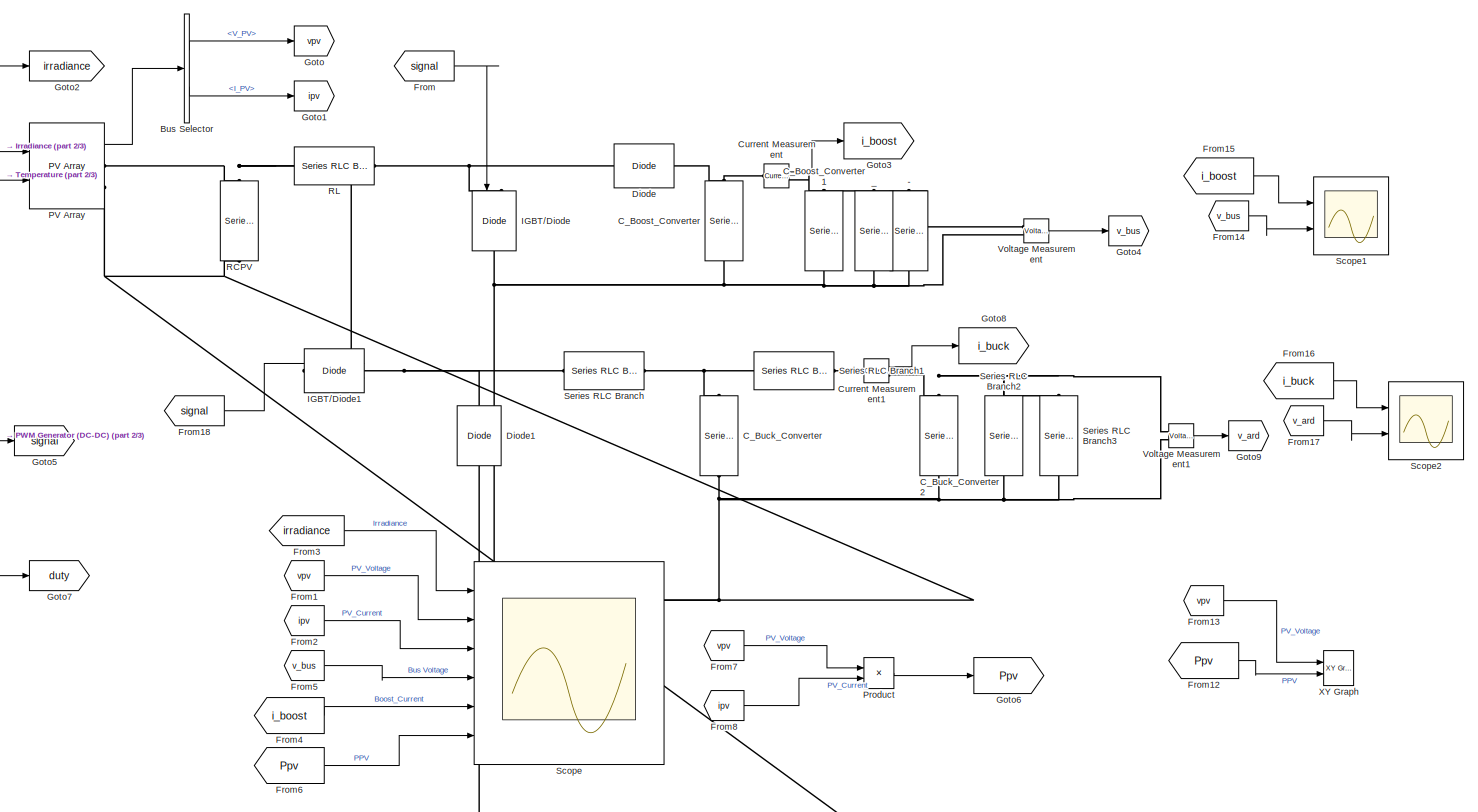
[diagram: root canvas - part 1/3, most of the canvas]
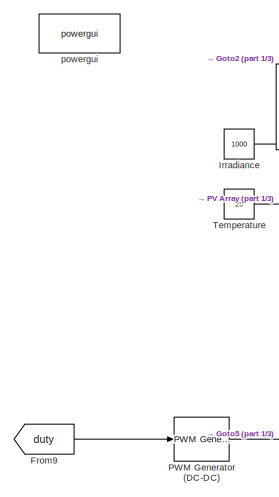
[diagram: root canvas - part 2/3, top left region]
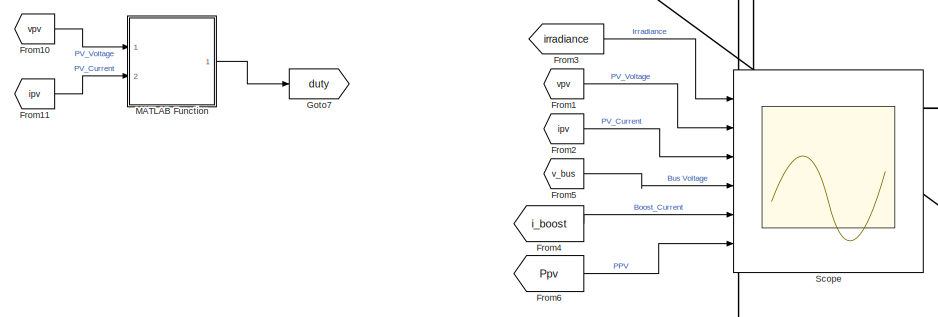
[diagram: root canvas - part 3/3, bottom left region]
MODEL slx_1bc41f0c22bb
KIND model
CONFIG AbsTol = auto
CONFIG EnableMultiTasking = off
CONFIG FixedStep = auto
CONFIG MaxStep = auto
CONFIG MinStep = auto
CONFIG RelTol = 1e-3
CONFIG SampleTimeConstraint = Unconstrained
CONFIG SolverName = FixedStepDiscrete
CONFIG StartTime = 0.0
CONFIG StopTime = 1.5
BLOCK [Reference] -  REF=spsSeriesRLCBranchLib/Series RLC Branch
  NameLocation = top
  Ports = [0, 0, 0, 0, 0, 1, 1]
  SourceBlock = spsSeriesRLCBranchLib/Series RLC Branch
  SourceProductBaseCode = PS
  SourceType = Series RLC Branch
BLOCK [BusSelector] Bus Selector
  OutputSignals = V_PV,I_PV
  Ports = [1, 2]
BLOCK [Reference] C_Boost_Converter  REF=spsSeriesRLCBranchLib/Series RLC Branch
  NameLocation = left
  Ports = [0, 0, 0, 0, 0, 1, 1]
  SourceBlock = spsSeriesRLCBranchLib/Series RLC Branch
  SourceProductBaseCode = PS
  SourceType = Series RLC Branch
BLOCK [Reference] C_Boost_Converter1  REF=spsSeriesRLCBranchLib/Series RLC Branch
  NameLocation = left
  Ports = [0, 0, 0, 0, 0, 1, 1]
  SourceBlock = spsSeriesRLCBranchLib/Series RLC Branch
  SourceProductBaseCode = PS
  SourceType = Series RLC Branch
BLOCK [Reference] C_Buck_Converter  REF=spsSeriesRLCBranchLib/Series RLC Branch
  NameLocation = left
  Ports = [0, 0, 0, 0, 0, 1, 1]
  SourceBlock = spsSeriesRLCBranchLib/Series RLC Branch
  SourceProductBaseCode = PS
  SourceType = Series RLC Branch
BLOCK [Reference] C_Buck_Converter2  REF=spsSeriesRLCBranchLib/Series RLC Branch
  NameLocation = left
  Ports = [0, 0, 0, 0, 0, 1, 1]
  SourceBlock = spsSeriesRLCBranchLib/Series RLC Branch
  SourceProductBaseCode = PS
  SourceType = Series RLC Branch
BLOCK [Reference] Current Measurement  REF=spsCurrentMeasurementLib/Current Measurement
  Ports = [0, 1, 0, 0, 0, 1, 1]
  SourceBlock = spsCurrentMeasurementLib/Current Measurement
  SourceProductBaseCode = PS
  SourceType = Current Measurement
  UserDataPersistent = on
BLOCK [Reference] Current Measurement1  REF=spsCurrentMeasurementLib/Current Measurement
  Ports = [0, 1, 0, 0, 0, 1, 1]
  SourceBlock = spsCurrentMeasurementLib/Current Measurement
  SourceProductBaseCode = PS
  SourceType = Current Measurement
  UserDataPersistent = on
BLOCK [Reference] Diode  REF=spsDiodeLib/Diode
  Ports = [0, 0, 0, 0, 0, 1, 1]
  SourceBlock = spsDiodeLib/Diode
  SourceProductBaseCode = PS
  SourceType = Diode
BLOCK [Reference] Diode1  REF=spsDiodeLib/Diode
  NameLocation = right
  Ports = [0, 0, 0, 0, 0, 1, 1]
  SourceBlock = spsDiodeLib/Diode
  SourceProductBaseCode = PS
  SourceType = Diode
BLOCK [From] From
  GotoTag = signal
  TagVisibility = global
BLOCK [From] From1
  GotoTag = vpv
  TagVisibility = global
BLOCK [From] From10
  GotoTag = vpv
  TagVisibility = global
BLOCK [From] From11
  GotoTag = ipv
  TagVisibility = global
BLOCK [From] From12
  GotoTag = Ppv
BLOCK [From] From13
  GotoTag = vpv
  TagVisibility = global
BLOCK [From] From14
  GotoTag = v_bus
  TagVisibility = global
BLOCK [From] From15
  GotoTag = i_boost
  TagVisibility = global
BLOCK [From] From16
  GotoTag = i_buck
  TagVisibility = global
BLOCK [From] From17
  GotoTag = v_ard
  TagVisibility = global
BLOCK [From] From18
  GotoTag = signal
  TagVisibility = global
BLOCK [From] From2
  GotoTag = ipv
  TagVisibility = global
BLOCK [From] From3
  GotoTag = irradiance
  TagVisibility = global
BLOCK [From] From4
  GotoTag = i_boost
  TagVisibility = global
BLOCK [From] From5
  GotoTag = v_bus
  TagVisibility = global
BLOCK [From] From6
  GotoTag = Ppv
BLOCK [From] From7
  GotoTag = vpv
  TagVisibility = global
BLOCK [From] From8
  GotoTag = ipv
  TagVisibility = global
BLOCK [From] From9
  GotoTag = duty
  TagVisibility = global
BLOCK [Goto] Goto
  GotoTag = vpv
  TagVisibility = global
BLOCK [Goto] Goto1
  GotoTag = ipv
  TagVisibility = global
BLOCK [Goto] Goto2
  GotoTag = irradiance
  TagVisibility = global
BLOCK [Goto] Goto3
  GotoTag = i_boost
  TagVisibility = global
BLOCK [Goto] Goto4
  GotoTag = v_bus
  TagVisibility = global
BLOCK [Goto] Goto5
  GotoTag = signal
  TagVisibility = global
BLOCK [Goto] Goto6
  GotoTag = Ppv
BLOCK [Goto] Goto7
  GotoTag = duty
  TagVisibility = global
BLOCK [Goto] Goto8
  GotoTag = i_buck
  TagVisibility = global
BLOCK [Goto] Goto9
  GotoTag = v_ard
  TagVisibility = global
BLOCK [Reference] IGBT//Diode  REF=spsIGBTDiodeLib/IGBT//Diode
  NameLocation = left
  Ports = [1, 0, 0, 0, 0, 1, 1]
  SourceBlock = spsIGBTDiodeLib/IGBT//Diode
  SourceProductBaseCode = PS
  SourceType = IGBT/Diode
BLOCK [Reference] IGBT//Diode1  REF=spsIGBTDiodeLib/IGBT//Diode
  NameLocation = top
  Ports = [1, 0, 0, 0, 0, 1, 1]
  SourceBlock = spsIGBTDiodeLib/IGBT//Diode
  SourceProductBaseCode = PS
  SourceType = IGBT/Diode
BLOCK [Constant] Irradiance
  Value = 1000
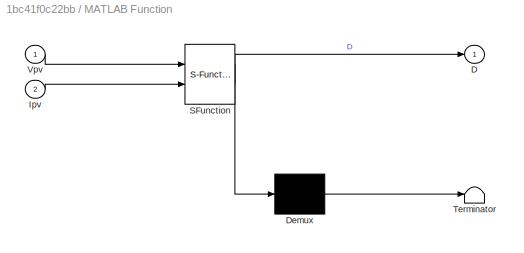
BLOCK [SubSystem] MATLAB Function
  ErrorFcn = Stateflow.Translate.translate
  PermitHierarchicalResolution = ExplicitOnly
  Ports = [2, 1]
  RequestExecContextInheritance = off
  SFBlockType = MATLAB Function
  TreatAsAtomicUnit = on
BLOCK [Demux] MATLAB Function/ Demux 
  Outputs = 1
  Ports = [1, 1]
BLOCK [S-Function] MATLAB Function/ SFunction 
  EnableBusSupport = on
  FunctionName = sf_sfun
  PortCounts = [2 2]
  Ports = [2, 2]
  SFcnIsStateOwnerBlock = off
  SFunctionDeploymentMode = off
  Tag = Stateflow S-Function 2
BLOCK [Terminator] MATLAB Function/ Terminator 
BLOCK [Outport] MATLAB Function/D
BLOCK [Inport] MATLAB Function/Ipv
  Port = 2
BLOCK [Inport] MATLAB Function/Vpv
BLOCK [Reference] PV Array  REF=spsPVArrayLib/PV Array
  Ports = [2, 1, 0, 0, 0, 0, 2]
  SourceBlock = spsPVArrayLib/PV Array
  SourceProductBaseCode = PS
  SourceType = PV array
BLOCK [Reference] PWM Generator (DC-DC)  REF=spsPWMGeneratorDCDCLib/PWM Generator
(DC-DC)
  Ports = [1, 1]
  SourceBlock = spsPWMGeneratorDCDCLib/PWM Generator\n(DC-DC)
  SourceProductBaseCode = PS
  SourceType = PWM Generator (DC-DC)
BLOCK [Product] Product
  Ports = [2, 1]
BLOCK [Reference] RCPV  REF=spsSeriesRLCBranchLib/Series RLC Branch
  NameLocation = left
  Ports = [0, 0, 0, 0, 0, 1, 1]
  SourceBlock = spsSeriesRLCBranchLib/Series RLC Branch
  SourceProductBaseCode = PS
  SourceType = Series RLC Branch
BLOCK [Reference] RL  REF=spsSeriesRLCBranchLib/Series RLC Branch
  NameLocation = top
  Ports = [0, 0, 0, 0, 0, 1, 1]
  SourceBlock = spsSeriesRLCBranchLib/Series RLC Branch
  SourceProductBaseCode = PS
  SourceType = Series RLC Branch
BLOCK [Scope] Scope
  Floating = off
  NumInputPorts = 6
  Ports = [6]
  ScopeSpecificationString = Simulink.scopes.TimeScopeBlockCfg('CurrentConfiguration', extmgr.ConfigurationSet(extmgr.Configuration('Core','General UI',true,'FigureColor',[1 1 1]),extmgr.Configuration('Core','Source UI',true),extmgr.Configuration('Sources','WiredSimulink',true),extmgr.Configuration('Visuals','Time Domain',true,'SerializedDisplays',{struct('MinYLimReal','900.00000','MaxYLimReal','1100.00000','YLabelReal','','M...<+5100ch>
BLOCK [Scope] Scope1
  Floating = off
  NumInputPorts = 2
  Ports = [2]
  ScopeSpecificationString = Simulink.scopes.TimeScopeBlockCfg('CurrentConfiguration', extmgr.ConfigurationSet(extmgr.Configuration('Core','General UI',true),extmgr.Configuration('Core','Source UI',true),extmgr.Configuration('Sources','WiredSimulink',true,'DataLoggingVariableName','ScopeData1'),extmgr.Configuration('Visuals','Time Domain',true,'SerializedDisplays',{struct('MinYLimReal','-3.82085','MaxYLimReal','34.38766','YLa...<+1431ch>
BLOCK [Scope] Scope2
  Floating = off
  NumInputPorts = 2
  Ports = [2]
  ScopeSpecificationString = Simulink.scopes.TimeScopeBlockCfg('CurrentConfiguration', extmgr.ConfigurationSet(extmgr.Configuration('Core','General UI',true),extmgr.Configuration('Core','Source UI',true),extmgr.Configuration('Sources','WiredSimulink',true,'DataLoggingVariableName','ScopeData1'),extmgr.Configuration('Visuals','Time Domain',true,'SerializedDisplays',{struct('MinYLimReal','-0.90767','MaxYLimReal','8.16903','YLab...<+1429ch>
BLOCK [Reference] Series RLC Branch  REF=spsSeriesRLCBranchLib/Series RLC Branch
  Ports = [0, 0, 0, 0, 0, 1, 1]
  SourceBlock = spsSeriesRLCBranchLib/Series RLC Branch
  SourceProductBaseCode = PS
  SourceType = Series RLC Branch
BLOCK [Reference] Series RLC Branch1  REF=spsSeriesRLCBranchLib/Series RLC Branch
  Ports = [0, 0, 0, 0, 0, 1, 1]
  SourceBlock = spsSeriesRLCBranchLib/Series RLC Branch
  SourceProductBaseCode = PS
  SourceType = Series RLC Branch
BLOCK [Reference] Series RLC Branch2  REF=spsSeriesRLCBranchLib/Series RLC Branch
  NameLocation = left
  Ports = [0, 0, 0, 0, 0, 1, 1]
  SourceBlock = spsSeriesRLCBranchLib/Series RLC Branch
  SourceProductBaseCode = PS
  SourceType = Series RLC Branch
BLOCK [Reference] Series RLC Branch3  REF=spsSeriesRLCBranchLib/Series RLC Branch
  NameLocation = left
  Ports = [0, 0, 0, 0, 0, 1, 1]
  SourceBlock = spsSeriesRLCBranchLib/Series RLC Branch
  SourceProductBaseCode = PS
  SourceType = Series RLC Branch
BLOCK [Constant] Temperature
  Value = 25
BLOCK [Reference] Voltage Measurement  REF=spsVoltageMeasurementLib/Voltage Measurement
  Ports = [0, 1, 0, 0, 0, 2]
  SourceBlock = spsVoltageMeasurementLib/Voltage Measurement
  SourceProductBaseCode = PS
  SourceType = Voltage Measurement
  UserDataPersistent = on
BLOCK [Reference] Voltage Measurement1  REF=spsVoltageMeasurementLib/Voltage Measurement
  Ports = [0, 1, 0, 0, 0, 2]
  SourceBlock = spsVoltageMeasurementLib/Voltage Measurement
  SourceProductBaseCode = PS
  SourceType = Voltage Measurement
  UserDataPersistent = on
BLOCK [Reference] XY Graph  REF=simulink/Sinks/XY Graph
  Ports = [2]
  SourceBlock = simulink/Sinks/XY Graph
  SourceProductBaseCode = SL
  SourceType = XY scope.
BLOCK [Reference] _  REF=spsSeriesRLCBranchLib/Series RLC Branch
  NameLocation = top
  Ports = [0, 0, 0, 0, 0, 1, 1]
  SourceBlock = spsSeriesRLCBranchLib/Series RLC Branch
  SourceProductBaseCode = PS
  SourceType = Series RLC Branch
BLOCK [Reference] powergui  REF=spspowerguiLib/powergui
  Ports = []
  Priority = 1
  SourceBlock = spspowerguiLib/powergui
  SourceProductBaseCode = PS
  SourceType = PSB option menu block
LINE Bus Selector:1 -> Goto:1
LINE Bus Selector:2 -> Goto1:1
LINE Current Measurement1:1 -> Goto8:1
LINE Current Measurement:1 -> Goto3:1
LINE From10:1 -> MATLAB Function:1
LINE From11:1 -> MATLAB Function:2
LINE From12:1 -> XY Graph:2
LINE From13:1 -> XY Graph:1
LINE From14:1 -> Scope1:2
LINE From15:1 -> Scope1:1
LINE From16:1 -> Scope2:1
LINE From17:1 -> Scope2:2
LINE From18:1 -> IGBT//Diode1:1
LINE From1:1 -> Scope:2
LINE From2:1 -> Scope:3
LINE From3:1 -> Scope:1
LINE From4:1 -> Scope:5
LINE From5:1 -> Scope:4
LINE From6:1 -> Scope:6
LINE From7:1 -> Product:1
LINE From8:1 -> Product:2
LINE From9:1 -> PWM Generator (DC-DC):1
LINE From:1 -> IGBT//Diode:1
NET Irradiance:1 -> Goto2:1, PV Array:1
LINE MATLAB Function:1 -> Goto7:1
LINE PV Array:1 -> Bus Selector:1
LINE PWM Generator (DC-DC):1 -> Goto5:1
LINE Product:1 -> Goto6:1
LINE Temperature:1 -> PV Array:2
LINE Voltage Measurement1:1 -> Goto9:1
LINE Voltage Measurement:1 -> Goto4:1
PNET net1: -:LConn1 -- C_Boost_Converter1:LConn1 -- Current Measurement:RConn1 -- Voltage Measurement:LConn1 -- _:LConn1
PNET net2: -:RConn1 -- C_Boost_Converter1:RConn1 -- C_Boost_Converter:RConn1 -- C_Buck_Converter2:RConn1 -- C_Buck_Converter:RConn1 -- Diode1:LConn1 -- IGBT//Diode:RConn1 -- PV Array:RConn2 -- RCPV:RConn1 -- Series RLC Branch2:RConn1 -- Series RLC Branch3:RConn1 -- Voltage Measurement1:LConn2 -- Voltage Measurement:LConn2 -- _:RConn1
PNET net3: C_Boost_Converter:LConn1 -- Current Measurement:LConn1 -- Diode:RConn1
PNET net4: C_Buck_Converter2:LConn1 -- Current Measurement1:RConn1 -- Series RLC Branch2:LConn1 -- Series RLC Branch3:LConn1 -- Voltage Measurement1:LConn1
PNET net5: C_Buck_Converter:LConn1 -- Series RLC Branch1:LConn1 -- Series RLC Branch:RConn1
PLINE Current Measurement1:LConn1 -- Series RLC Branch1:RConn1
PNET net6: Diode1:RConn1 -- IGBT//Diode1:RConn1 -- Series RLC Branch:LConn1
PNET net7: Diode:LConn1 -- IGBT//Diode:LConn1 -- RL:LConn1
PNET net8: IGBT//Diode1:LConn1 -- PV Array:RConn1 -- RCPV:LConn1 -- RL:RConn1
note: NET lines group one-source signal fan-out (src -> all destinations, sorted); 1:1 wires keep LINE; PNET lines group multi-terminal physical nets as a canonical sorted terminal list (undirected conserving connections); 2-terminal nets keep the pairwise PLINE form
CHART MATLAB Function states=1 transitions=1
  STATE_LABEL 'eML_blk_kernel()'
  STATE_LABEL 'SCRIPT:\nfunction D = Pand0(Vpv, Ipv)\n\npersistent Dprev Pprev Vprev\n\nif isempty(Dprev)\n    Dprev = 0.7;\n    Vprev = 190;\n    Pprev = 2000;\nend\n\ndeltaD = 125e-6;\n\nPpv = Vpv*Ipv;\n\nif (Ppv-Pprev) ~= 0\n    if (Ppv-Pprev) > 0\n        if (Vpv-Vprev) > 0\n            D = Dprev - deltaD;\n        else\n            D = Dprev + deltaD;\n        end\n    else\n        if (Vpv-Vprev) > 0\n            D = Dprev + delt...<+132ch>'
CHART  states=0 transitions=0
